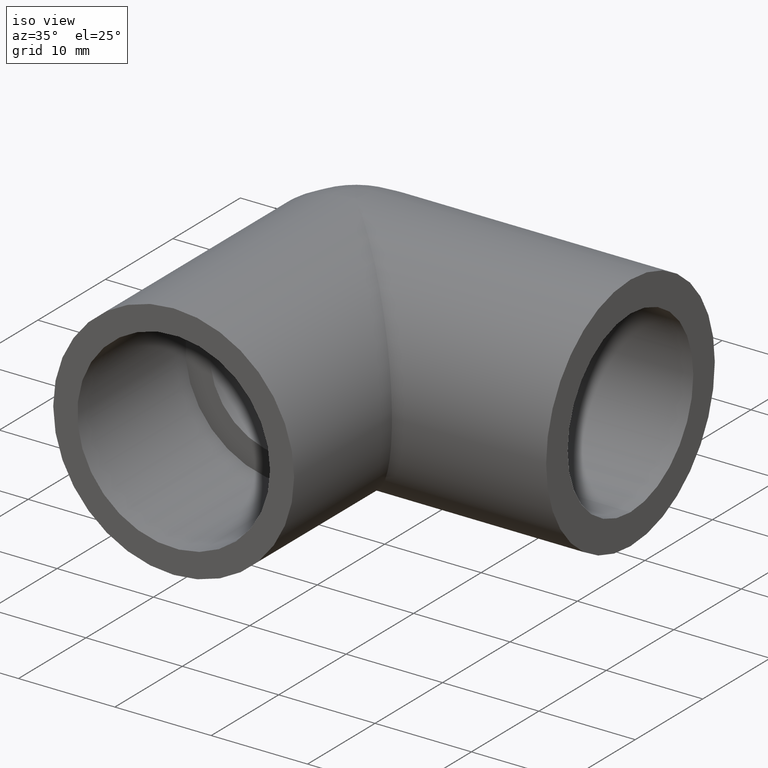
[diagram: clean part render]
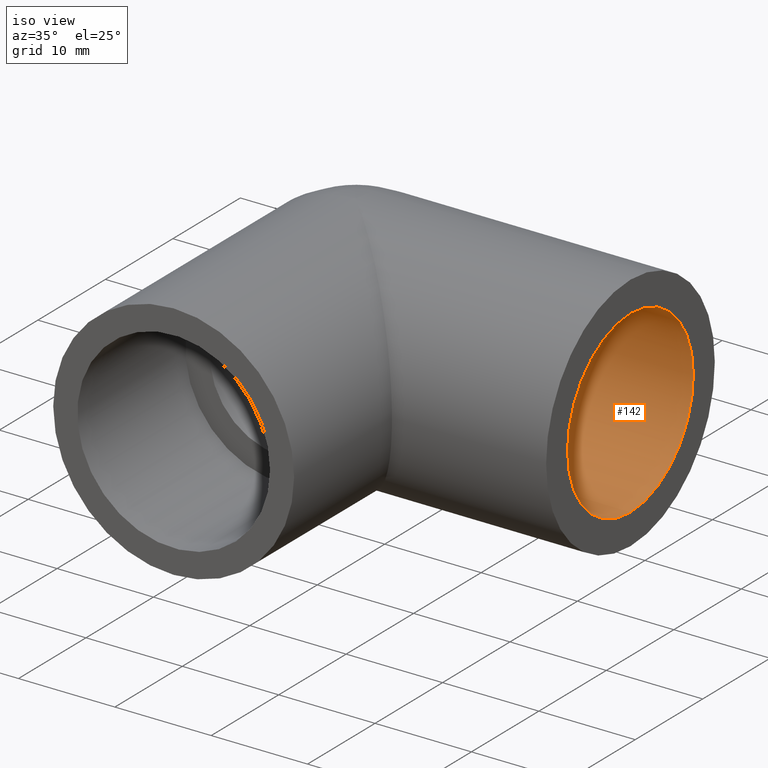
[diagram: same view with one face highlighted and labeled with its STEP entity id]
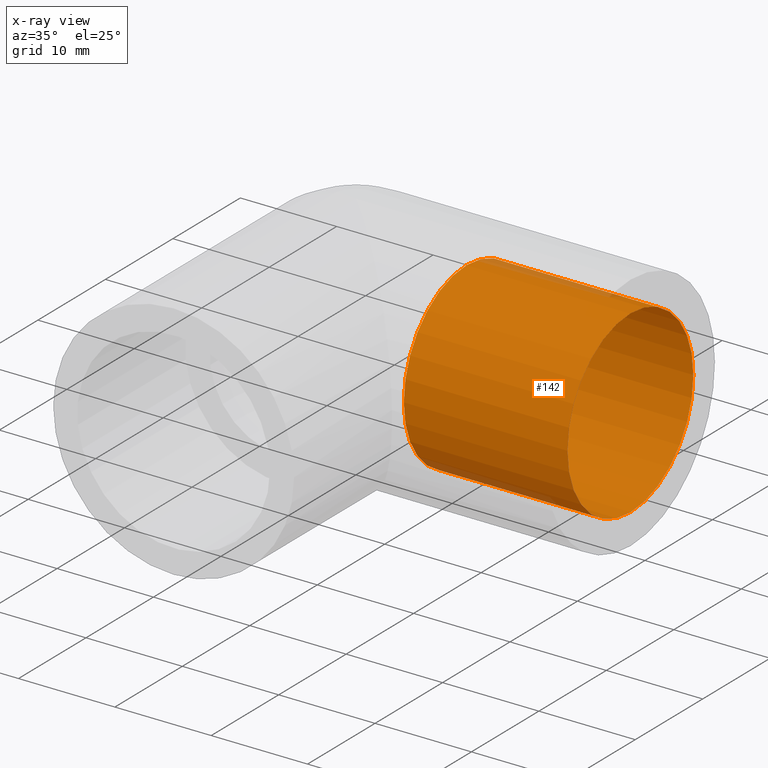
[diagram: x-ray of the same camera — body ghosted, the highlighted face saturated]
A machine part, iso view. The second image highlights one B-rep face of the part: STEP entity #142.
The next image is the same camera in x-ray: the body ghosted, the highlighted face saturated — about 3% of this face is hidden behind the body in this view.
In plain terms, the highlighted cylindrical surface (bore or boss wall) has radius 9.3155 mm, axis along (-1, 0, 0).
Its self-contained STEP definition (entity closure, byte-faithful):
#27=FACE_BOUND('',#56,.T.);
#38=FACE_OUTER_BOUND('',#55,.T.);
#55=EDGE_LOOP('',(#115));
#56=EDGE_LOOP('',(#116));
#74=CIRCLE('',#163,9.3155);
#75=CIRCLE('',#164,9.3155);
#86=VERTEX_POINT('',#247);
#87=VERTEX_POINT('',#249);
#98=EDGE_CURVE('',#86,#86,#74,.T.);
#99=EDGE_CURVE('',#87,#87,#75,.T.);
#115=ORIENTED_EDGE('',*,*,#98,.T.);
#116=ORIENTED_EDGE('',*,*,#99,.F.);
#134=CYLINDRICAL_SURFACE('',#162,9.3155);
#142=ADVANCED_FACE('',(#38,#27),#134,.F.);
#162=AXIS2_PLACEMENT_3D('',#246,#200,#201);
#163=AXIS2_PLACEMENT_3D('',#248,#202,#203);
#164=AXIS2_PLACEMENT_3D('',#250,#204,#205);
#200=DIRECTION('center_axis',(-1.,0.,0.));
#201=DIRECTION('ref_axis',(0.,0.,1.));
#202=DIRECTION('center_axis',(-1.,0.,0.));
#203=DIRECTION('ref_axis',(0.,0.,1.));
#204=DIRECTION('center_axis',(-1.,0.,0.));
#205=DIRECTION('ref_axis',(0.,0.,1.));
#246=CARTESIAN_POINT('Origin',(28.5,0.,0.));
#247=CARTESIAN_POINT('',(11.5,1.14081972574572E-15,-9.3155));
#248=CARTESIAN_POINT('Origin',(11.5,0.,0.));
#249=CARTESIAN_POINT('',(28.5,1.14081972574572E-15,-9.3155));
#250=CARTESIAN_POINT('Origin',(28.5,0.,0.));